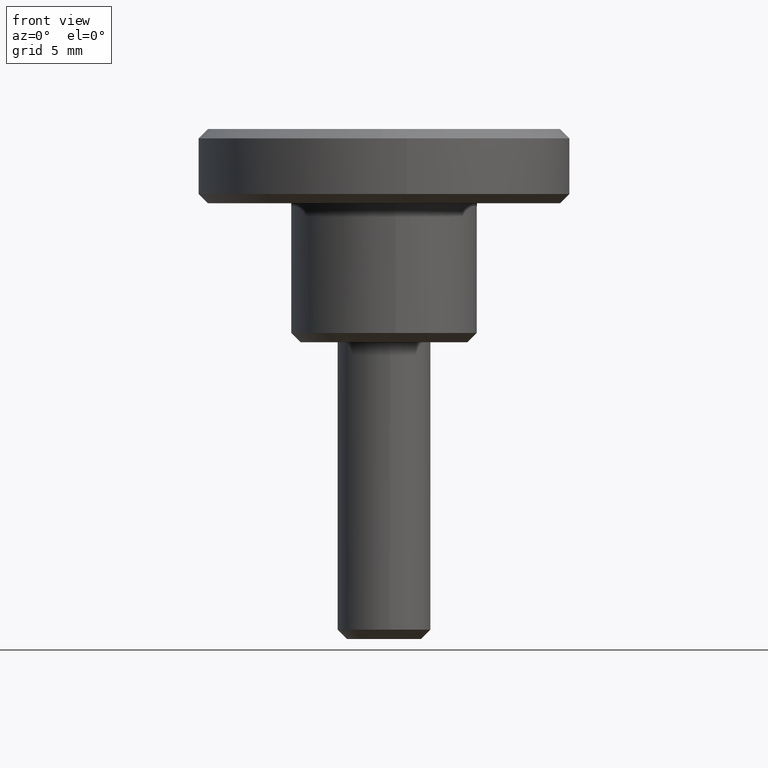
[diagram: clean part render]
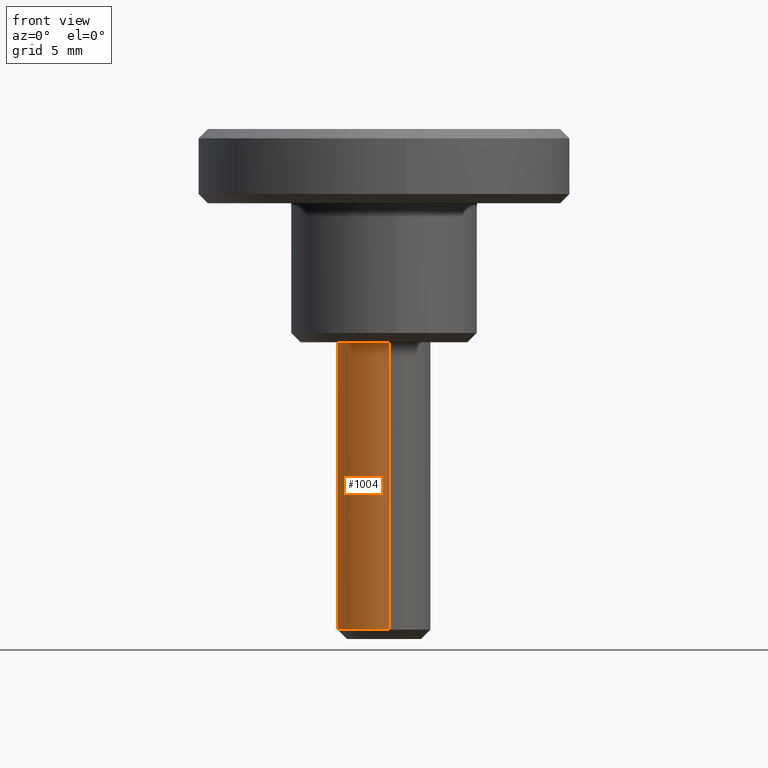
[diagram: same view with one face highlighted and labeled with its STEP entity id]
A machine part, front view. The second image highlights one B-rep face of the part: STEP entity #1004.
In plain terms, the highlighted face is a freeform B-spline surface patch.
Its self-contained STEP definition (entity closure, byte-faithful):
#66=CARTESIAN_POINT('',(-1.010538580020176,-2.286659523915468,-15.499999999995470));
#67=VERTEX_POINT('',#66);
#68=CARTESIAN_POINT('',(0.310320005219403,-2.480665534561366,-15.500000000000000));
#69=VERTEX_POINT('',#68);
#70=CARTESIAN_POINT('',(-1.010538580020176,-2.286659523915468,-15.499999999995474));
#71=CARTESIAN_POINT('',(-0.527789043185289,-2.500000000000000,-15.499999999999996));
#72=CARTESIAN_POINT('',(0.0,-2.500000000000000,-15.500000000000000));
#73=CARTESIAN_POINT('',(0.155762318853798,-2.500000000000000,-15.499999999999998));
#74=CARTESIAN_POINT('',(0.310320005219403,-2.480665534561366,-15.500000000000004));
#82=(BOUNDED_CURVE()B_SPLINE_CURVE(2,(#70,#71,#72,#73,#74),.UNSPECIFIED.,.F.,.U.)B_SPLINE_CURVE_WITH_KNOTS((3,2,3),(0.181361578453286,0.250000000000000,0.271473928973398),.UNSPECIFIED.)CURVE()GEOMETRIC_REPRESENTATION_ITEM()RATIONAL_B_SPLINE_CURVE((0.883326595744863,0.919585087115634,1.0,0.974841727289641,0.954005430269486))REPRESENTATION_ITEM(''));
#83=EDGE_CURVE('',#67,#69,#82,.T.);
#126=CARTESIAN_POINT('',(-0.021816338757609,2.499904807660299,-15.500000000000000));
#127=VERTEX_POINT('',#126);
#184=CARTESIAN_POINT('',(-2.500000000000000,0.0,-15.500000000000000));
#185=VERTEX_POINT('',#184);
#186=CARTESIAN_POINT('',(-2.500000000000000,0.0,-15.500000000000000));
#187=CARTESIAN_POINT('',(-2.500000000000000,-1.628425006403278,-15.500000000000004));
#188=CARTESIAN_POINT('',(-1.010538580020176,-2.286659523915468,-15.499999999995476));
#196=(BOUNDED_CURVE()B_SPLINE_CURVE(2,(#186,#187,#188),.UNSPECIFIED.,.F.,.U.)B_SPLINE_CURVE_WITH_KNOTS((3,3),(0.0,0.181361578453286),.UNSPECIFIED.)CURVE()GEOMETRIC_REPRESENTATION_ITEM()RATIONAL_B_SPLINE_CURVE((1.0,0.787521694070914,0.883326595744862))REPRESENTATION_ITEM(''));
#197=EDGE_CURVE('',#185,#67,#196,.T.);
#199=CARTESIAN_POINT('',(-0.021816338757609,2.499904807660299,-15.499999999999996));
#200=CARTESIAN_POINT('',(-2.499999999999999,2.478278026441151,-15.499999999999998));
#201=CARTESIAN_POINT('',(-2.500000000000000,0.0,-15.500000000000000));
#209=(BOUNDED_CURVE()B_SPLINE_CURVE(2,(#199,#200,#201),.UNSPECIFIED.,.F.,.U.)B_SPLINE_CURVE_WITH_KNOTS((3,3),(0.751539894338277,1.0),.UNSPECIFIED.)CURVE()GEOMETRIC_REPRESENTATION_ITEM()RATIONAL_B_SPLINE_CURVE((0.996414028092791,0.708910879624030,1.0))REPRESENTATION_ITEM(''));
#210=EDGE_CURVE('',#127,#185,#209,.T.);
#898=CARTESIAN_POINT('',(-0.021816338765866,2.499904807660254,3.608225E-016));
#899=VERTEX_POINT('',#898);
#900=CARTESIAN_POINT('',(-0.021816338757609,2.499904807660299,-15.500000000000000));
#901=CARTESIAN_POINT('',(-0.021816338765866,2.499904807660254,3.608225E-016));
#902=QUASI_UNIFORM_CURVE('',1,(#900,#901),.UNSPECIFIED.,.F.,.U.);
#903=EDGE_CURVE('',#127,#899,#902,.T.);
#922=CARTESIAN_POINT('',(0.310320005224747,-2.480665534560697,3.190676E-016));
#923=VERTEX_POINT('',#922);
#937=CARTESIAN_POINT('',(0.310320005219403,-2.480665534561366,-15.500000000000000));
#938=CARTESIAN_POINT('',(0.310320005224747,-2.480665534560697,3.190676E-016));
#939=QUASI_UNIFORM_CURVE('',1,(#937,#938),.UNSPECIFIED.,.F.,.U.);
#940=EDGE_CURVE('',#69,#923,#939,.T.);
#945=CARTESIAN_POINT('',(-0.021816338745935,2.499904807660427,-15.887499999999999));
#946=CARTESIAN_POINT('',(-2.521721146406362,2.478088468914493,-15.887500000000006));
#947=CARTESIAN_POINT('',(-2.499904807660427,-0.021816338745935,-15.887499999999999));
#948=CARTESIAN_POINT('',(-2.478088468914493,-2.521721146406362,-15.887500000000006));
#949=CARTESIAN_POINT('',(0.021816338745935,-2.499904807660427,-15.887499999999999));
#950=CARTESIAN_POINT('',(0.166625397395434,-2.498641078150688,-15.887500000000006));
#951=CARTESIAN_POINT('',(0.310320005199573,-2.480665534563847,-15.887500000000001));
#952=CARTESIAN_POINT('',(-0.021816338745935,2.499904807660427,0.397187500000001));
#953=CARTESIAN_POINT('',(-2.521721146406362,2.478088468914493,0.397187500000001));
#954=CARTESIAN_POINT('',(-2.499904807660427,-0.021816338745935,0.397187500000001));
#955=CARTESIAN_POINT('',(-2.478088468914493,-2.521721146406362,0.397187500000001));
#956=CARTESIAN_POINT('',(0.021816338745935,-2.499904807660427,0.397187500000001));
#957=CARTESIAN_POINT('',(0.166625397395434,-2.498641078150688,0.397187500000001));
#958=CARTESIAN_POINT('',(0.310320005199573,-2.480665534563847,0.397187500000001));
#966=(BOUNDED_SURFACE()B_SPLINE_SURFACE(2,1,((#945,#952),(#946,#953),(#947,#954),(#948,#955),(#949,#956),(#950,#957),(#951,#958)),.UNSPECIFIED.,.F.,.F.,.U.)B_SPLINE_SURFACE_WITH_KNOTS((3,2,2,3),(2,2),(0.0,4.142135623730949,8.284271247461899,8.615642097360375),(0.0,16.284687500000011),.UNSPECIFIED.)GEOMETRIC_REPRESENTATION_ITEM()RATIONAL_B_SPLINE_SURFACE(((1.0,1.0),(0.707106781186548,0.707106781186548),(1.0,1.0),(0.707106781186548,0.707106781186548),(1.0,1.0),(0.976568542494924,0.976568542494924),(0.956886118190660,0.956886118190660)))REPRESENTATION_ITEM('')SURFACE());
#967=ORIENTED_EDGE('',*,*,#197,.T.);
#968=ORIENTED_EDGE('',*,*,#83,.T.);
#969=ORIENTED_EDGE('',*,*,#940,.T.);
#970=CARTESIAN_POINT('',(-2.500000000000000,0.0,0.0));
#971=VERTEX_POINT('',#970);
#972=CARTESIAN_POINT('',(0.310320005224747,-2.480665534560697,3.190676E-016));
#973=CARTESIAN_POINT('',(0.155762318859204,-2.500000000000000,0.0));
#974=CARTESIAN_POINT('',(0.0,-2.500000000000000,0.0));
#975=CARTESIAN_POINT('',(-2.500000000000000,-2.500000000000000,0.0));
#976=CARTESIAN_POINT('',(-2.500000000000000,0.0,0.0));
#984=(BOUNDED_CURVE()B_SPLINE_CURVE(2,(#972,#973,#974,#975,#976),.UNSPECIFIED.,.F.,.U.)B_SPLINE_CURVE_WITH_KNOTS((3,2,3),(0.728526071025876,0.750000000000000,1.0),.UNSPECIFIED.)CURVE()GEOMETRIC_REPRESENTATION_ITEM()RATIONAL_B_SPLINE_CURVE((0.954005430268076,0.974841727288789,1.0,0.707106781186548,1.0))REPRESENTATION_ITEM(''));
#985=EDGE_CURVE('',#923,#971,#984,.T.);
#986=ORIENTED_EDGE('',*,*,#985,.T.);
#987=CARTESIAN_POINT('',(-2.500000000000000,0.0,0.0));
#988=CARTESIAN_POINT('',(-2.500000000000000,2.478278026447927,0.0));
#989=CARTESIAN_POINT('',(-0.021816338765866,2.499904807660254,3.608225E-016));
#997=(BOUNDED_CURVE()B_SPLINE_CURVE(2,(#987,#988,#989),.UNSPECIFIED.,.F.,.U.)B_SPLINE_CURVE_WITH_KNOTS((3,3),(0.0,0.248460105662204),.UNSPECIFIED.)CURVE()GEOMETRIC_REPRESENTATION_ITEM()RATIONAL_B_SPLINE_CURVE((1.0,0.708910879623466,0.996414028093906))REPRESENTATION_ITEM(''));
#998=EDGE_CURVE('',#971,#899,#997,.T.);
#999=ORIENTED_EDGE('',*,*,#998,.T.);
#1000=ORIENTED_EDGE('',*,*,#903,.F.);
#1001=ORIENTED_EDGE('',*,*,#210,.T.);
#1002=EDGE_LOOP('',(#967,#968,#969,#986,#999,#1000,#1001));
#1003=FACE_OUTER_BOUND('',#1002,.T.);
#1004=ADVANCED_FACE('',(#1003),#966,.T.);